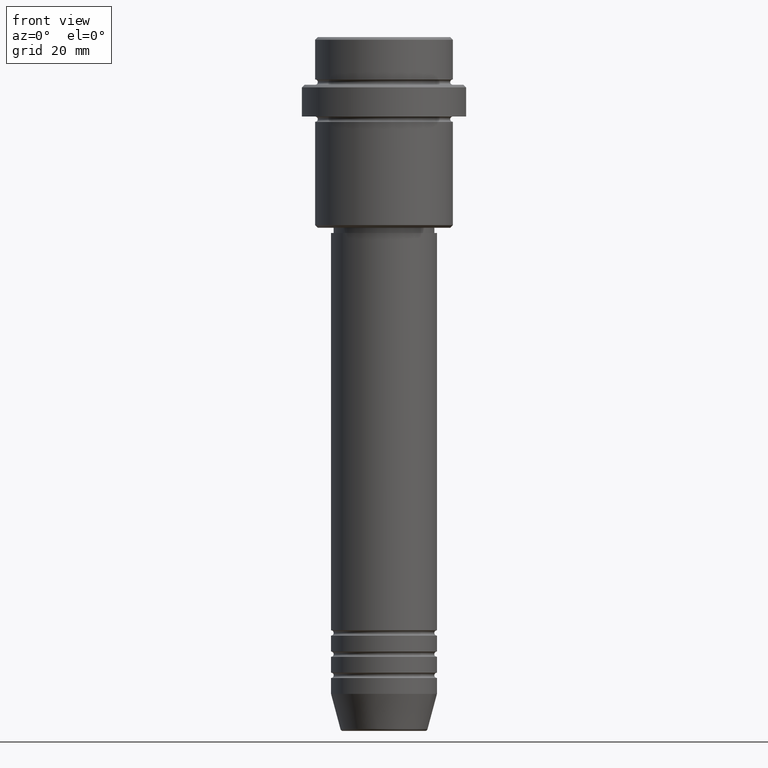
[diagram: clean part render]
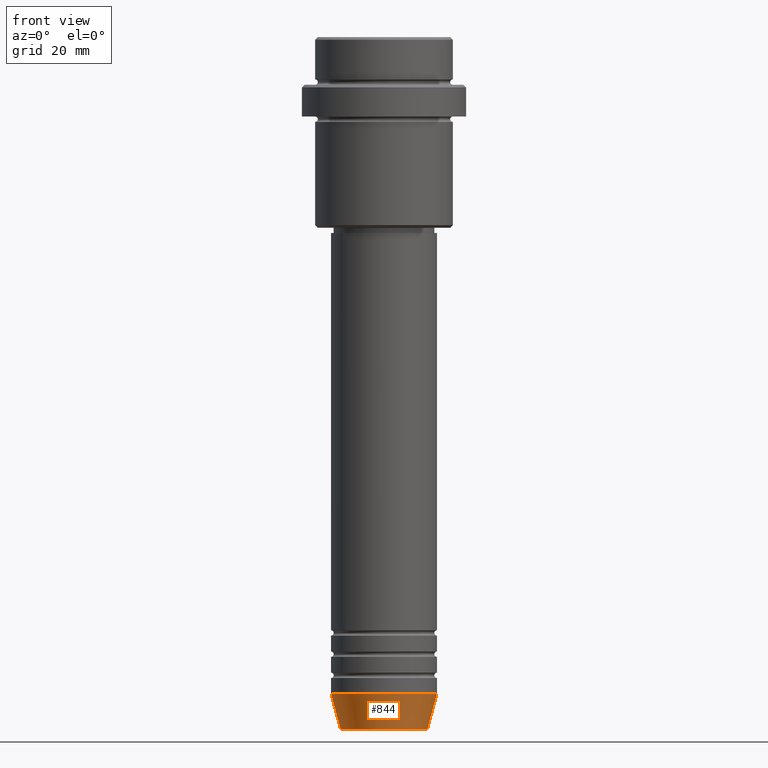
[diagram: same view with one face highlighted and labeled with its STEP entity id]
A machine part, front view. The second image highlights one B-rep face of the part: STEP entity #844.
In plain terms, the highlighted conical surface has half-angle 15 deg.
Its self-contained STEP definition (entity closure, byte-faithful):
#61 = LINE ( 'NONE', #1253, #921 ) ;
#65 = ORIENTED_EDGE ( 'NONE', *, *, #1129, .T. ) ;
#85 = CARTESIAN_POINT ( 'NONE',  ( 0.000000000000000000, 0.000000000000000000, -130.6294095225512422 ) ) ;
#133 = AXIS2_PLACEMENT_3D ( 'NONE', #85, #1406, #1382 ) ;
#202 = LINE ( 'NONE', #283, #1358 ) ;
#244 = DIRECTION ( 'NONE',  ( -0.000000000000000000, -0.000000000000000000, 1.000000000000000000 ) ) ;
#262 = CARTESIAN_POINT ( 'NONE',  ( -10.00000000000000000, 1.224646799147353256E-15, -124.0000000000000000 ) ) ;
#265 = AXIS2_PLACEMENT_3D ( 'NONE', #1194, #244, #670 ) ;
#266 = AXIS2_PLACEMENT_3D ( 'NONE', #809, #1250, #986 ) ;
#283 = CARTESIAN_POINT ( 'NONE',  ( 10.00000000000000000, 0.000000000000000000, -124.0000000000000000 ) ) ;
#389 = CARTESIAN_POINT ( 'NONE',  ( -8.223655072137191269, 1.115877042642912054E-15, -130.6294095225512422 ) ) ;
#399 = EDGE_CURVE ( 'NONE', #549, #658, #466, .T. ) ;
#413 = CARTESIAN_POINT ( 'NONE',  ( 8.223655072137191269, 0.000000000000000000, -130.6294095225512422 ) ) ;
#423 = CIRCLE ( 'NONE', #133, 8.223655072137191269 ) ;
#466 = CIRCLE ( 'NONE', #265, 10.00000000000000000 ) ;
#518 = CONICAL_SURFACE ( 'NONE', #266, 10.00000000000000000, 0.2617993877991500740 ) ;
#527 = DIRECTION ( 'NONE',  ( 0.2588190451025213501, 0.000000000000000000, 0.9659258262890680902 ) ) ;
#549 = VERTEX_POINT ( 'NONE', #262 ) ;
#658 = VERTEX_POINT ( 'NONE', #1380 ) ;
#670 = DIRECTION ( 'NONE',  ( 1.000000000000000000, 0.000000000000000000, 0.000000000000000000 ) ) ;
#728 = VERTEX_POINT ( 'NONE', #389 ) ;
#809 = CARTESIAN_POINT ( 'NONE',  ( 0.000000000000000000, 0.000000000000000000, -124.0000000000000000 ) ) ;
#844 = ADVANCED_FACE ( 'NONE', ( #1359 ), #518, .T. ) ;
#921 = VECTOR ( 'NONE', #1277, 1000.000000000000000 ) ;
#986 = DIRECTION ( 'NONE',  ( 1.000000000000000000, 0.000000000000000000, 0.000000000000000000 ) ) ;
#1001 = EDGE_CURVE ( 'NONE', #728, #549, #61, .T. ) ;
#1014 = VERTEX_POINT ( 'NONE', #413 ) ;
#1052 = ORIENTED_EDGE ( 'NONE', *, *, #1001, .F. ) ;
#1102 = ORIENTED_EDGE ( 'NONE', *, *, #1206, .T. ) ;
#1129 = EDGE_CURVE ( 'NONE', #1014, #658, #202, .T. ) ;
#1194 = CARTESIAN_POINT ( 'NONE',  ( 0.000000000000000000, 0.000000000000000000, -124.0000000000000000 ) ) ;
#1206 = EDGE_CURVE ( 'NONE', #728, #1014, #423, .T. ) ;
#1211 = EDGE_LOOP ( 'NONE', ( #1052, #1102, #65, #1246 ) ) ;
#1246 = ORIENTED_EDGE ( 'NONE', *, *, #399, .F. ) ;
#1250 = DIRECTION ( 'NONE',  ( -0.000000000000000000, -0.000000000000000000, 1.000000000000000000 ) ) ;
#1253 = CARTESIAN_POINT ( 'NONE',  ( -10.00000000000000000, 1.224646799147353256E-15, -124.0000000000000000 ) ) ;
#1277 = DIRECTION ( 'NONE',  ( -0.2588190451025213501, 3.169619151431772337E-17, 0.9659258262890680902 ) ) ;
#1358 = VECTOR ( 'NONE', #527, 1000.000000000000000 ) ;
#1359 = FACE_OUTER_BOUND ( 'NONE', #1211, .T. ) ;
#1380 = CARTESIAN_POINT ( 'NONE',  ( 10.00000000000000000, 0.000000000000000000, -124.0000000000000000 ) ) ;
#1382 = DIRECTION ( 'NONE',  ( 1.000000000000000000, 0.000000000000000000, 0.000000000000000000 ) ) ;
#1406 = DIRECTION ( 'NONE',  ( -0.000000000000000000, -0.000000000000000000, 1.000000000000000000 ) ) ;